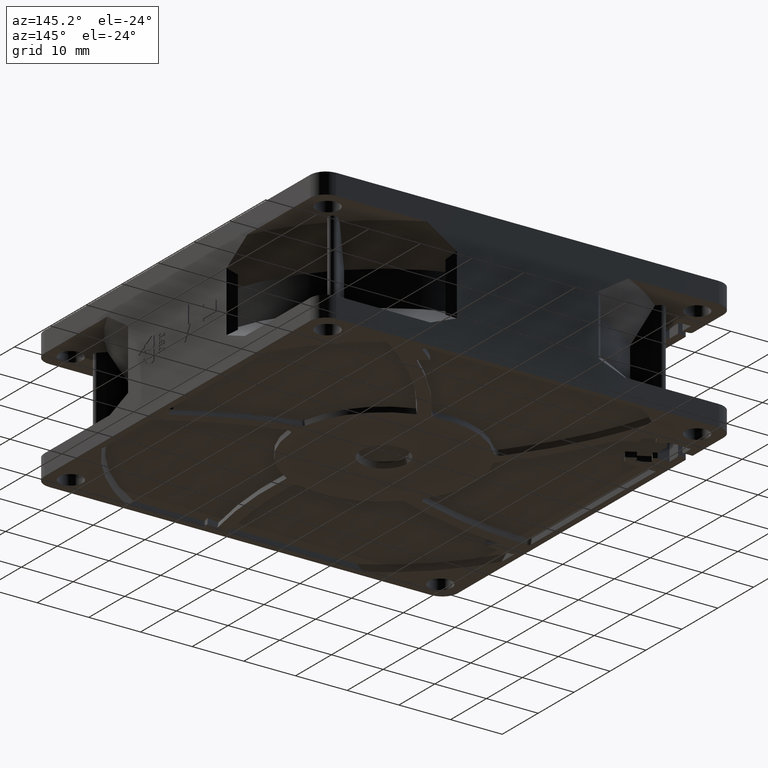
[diagram: clean part render]
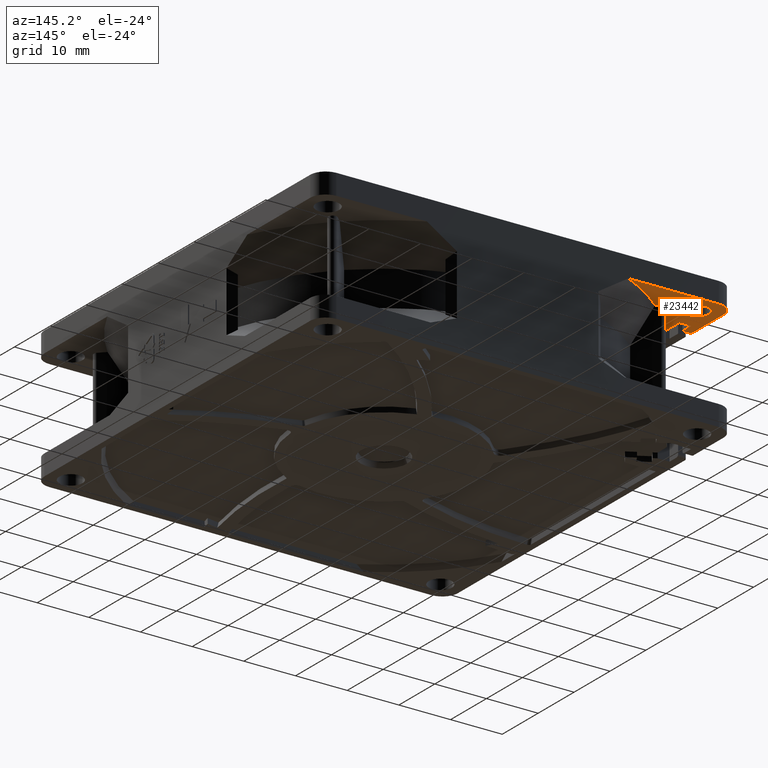
[diagram: same view with one face highlighted and labeled with its STEP entity id]
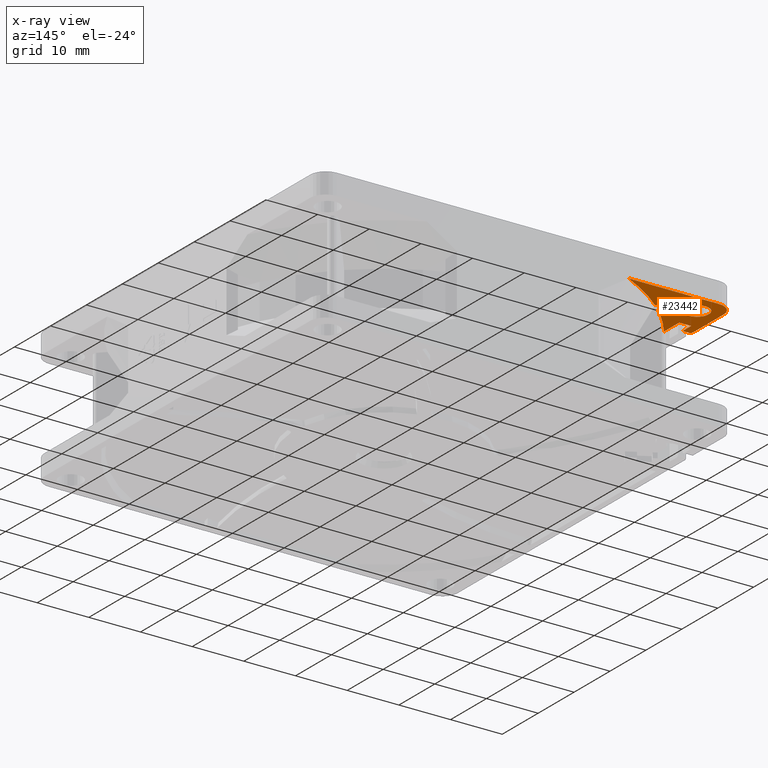
[diagram: x-ray of the same camera — body ghosted, the highlighted face saturated]
A machine part, auxiliary view. The second image highlights one B-rep face of the part: STEP entity #23442.
The next image is the same camera in x-ray: the body ghosted, the highlighted face saturated — about 0% of this face is hidden behind the body in this view.
In plain terms, the highlighted planar face has unit normal (0, 0, -1).
Its self-contained STEP definition (entity closure, byte-faithful):
#3640=DIRECTION('',(-7.071067811865E-1,7.071067811865E-1,0.E0));
#3641=VECTOR('',#3640,7.080102722282E-1);
#3642=CARTESIAN_POINT('',(-2.897010984391E1,3.377843595598E1,
-3.999999999942E0));
#3643=LINE('',#3642,#3641);
#3644=CARTESIAN_POINT('',(0.E0,0.E0,-4.E0));
#3645=DIRECTION('',(0.E0,0.E0,1.E0));
#3646=DIRECTION('',(-4.382022471910E-1,8.988764044944E-1,0.E0));
#3647=AXIS2_PLACEMENT_3D('',#3644,#3645,#3646);
#3649=CARTESIAN_POINT('',(-3.7E1,3.7E1,-4.E0));
#3650=DIRECTION('',(0.E0,0.E0,-1.E0));
#3651=DIRECTION('',(-1.E0,0.E0,0.E0));
#3652=AXIS2_PLACEMENT_3D('',#3649,#3650,#3651);
#3654=CARTESIAN_POINT('',(-3.95E1,2.85E1,-4.E0));
#3655=DIRECTION('',(0.E0,0.E0,-1.E0));
#3656=DIRECTION('',(0.E0,-1.E0,0.E0));
#3657=AXIS2_PLACEMENT_3D('',#3654,#3655,#3656);
#3659=CARTESIAN_POINT('',(0.E0,0.E0,-4.E0));
#3660=DIRECTION('',(0.E0,0.E0,1.E0));
#3661=DIRECTION('',(-6.795775447955E-1,7.336036808862E-1,0.E0));
#3662=AXIS2_PLACEMENT_3D('',#3659,#3660,#3661);
#3664=DIRECTION('',(7.071067811865E-1,-7.071067811866E-1,0.E0));
#3665=VECTOR('',#3664,6.104162831568E-1);
#3666=CARTESIAN_POINT('',(-3.067283023657E1,3.307699329260E1,
-3.999999999942E0));
#3667=LINE('',#3666,#3665);
#3668=CARTESIAN_POINT('',(-3.007178947256E1,3.367803405661E1,-4.E0));
#3669=DIRECTION('',(0.E0,0.E0,1.E0));
#3670=DIRECTION('',(-1.E0,1.671865260612E-14,0.E0));
#3671=AXIS2_PLACEMENT_3D('',#3668,#3669,#3670);
#3673=CARTESIAN_POINT('',(-3.007178947256E1,3.367803405661E1,-4.E0));
#3674=DIRECTION('',(0.E0,0.E0,1.E0));
#3675=DIRECTION('',(-6.660418487831E-1,7.459143755617E-1,0.E0));
#3676=AXIS2_PLACEMENT_3D('',#3673,#3674,#3675);
#3678=CARTESIAN_POINT('',(-3.007178947256E1,3.367803405661E1,-4.E0));
#3679=DIRECTION('',(0.E0,0.E0,1.E0));
#3680=DIRECTION('',(7.071067811865E-1,7.071067811865E-1,0.E0));
#3681=AXIS2_PLACEMENT_3D('',#3678,#3679,#3680);
#3683=CARTESIAN_POINT('',(-3.575E1,3.575E1,-4.E0));
#3684=DIRECTION('',(0.E0,0.E0,1.E0));
#3685=DIRECTION('',(1.E0,0.E0,0.E0));
#3686=AXIS2_PLACEMENT_3D('',#3683,#3684,#3685);
#3688=CARTESIAN_POINT('',(-3.575E1,3.575E1,-4.E0));
#3689=DIRECTION('',(0.E0,0.E0,1.E0));
#3690=DIRECTION('',(-1.E0,0.E0,0.E0));
#3691=AXIS2_PLACEMENT_3D('',#3688,#3689,#3690);
#3757=DIRECTION('',(-1.E0,0.E0,0.E0));
#3758=VECTOR('',#3757,1.75E1);
#3759=CARTESIAN_POINT('',(-1.95E1,4.E1,-4.E0));
#3760=LINE('',#3759,#3758);
#3766=CARTESIAN_POINT('',(-1.95E1,4.E1,-4.E0));
#5324=DIRECTION('',(0.E0,-1.E0,0.E0));
#5325=VECTOR('',#5324,4.241827280943E0);
#5326=CARTESIAN_POINT('',(-3.6E1,3.04E1,-4.E0));
#5327=LINE('',#5326,#5325);
#5339=DIRECTION('',(1.E0,0.E0,0.E0));
#5340=VECTOR('',#5339,2.3E0);
#5341=CARTESIAN_POINT('',(-3.83E1,3.04E1,-4.E0));
#5342=LINE('',#5341,#5340);
#5347=DIRECTION('',(0.E0,1.E0,0.E0));
#5348=VECTOR('',#5347,2.4E0);
#5349=CARTESIAN_POINT('',(-3.83E1,2.8E1,-4.E0));
#5350=LINE('',#5349,#5348);
#5360=DIRECTION('',(1.E0,0.E0,0.E0));
#5361=VECTOR('',#5360,1.2E0);
#5362=CARTESIAN_POINT('',(-3.95E1,2.8E1,-4.E0));
#5363=LINE('',#5362,#5361);
#5376=DIRECTION('',(0.E0,-1.E0,0.E0));
#5377=VECTOR('',#5376,8.5E0);
#5378=CARTESIAN_POINT('',(-4.E1,3.7E1,-4.E0));
#5379=LINE('',#5378,#5377);
#12181=CARTESIAN_POINT('',(-2.897010984391E1,3.377843595598E1,
-3.999999999942E0));
#12182=CARTESIAN_POINT('',(-2.947074870855E1,3.427907482062E1,
-3.999999999942E0));
#12183=VERTEX_POINT('',#12181);
#12184=VERTEX_POINT('',#12182);
#12185=CARTESIAN_POINT('',(-3.063792504402E1,3.431206127584E1,-4.E0));
#12186=VERTEX_POINT('',#12185);
#12187=CARTESIAN_POINT('',(-3.092178947256E1,3.367803405661E1,-4.E0));
#12188=VERTEX_POINT('',#12187);
#12201=CARTESIAN_POINT('',(-3.067283023657E1,3.307699329260E1,
-3.999999999942E0));
#12202=CARTESIAN_POINT('',(-3.024120074340E1,3.264536379943E1,
-3.999999999942E0));
#12203=VERTEX_POINT('',#12201);
#12204=VERTEX_POINT('',#12202);
#12205=CARTESIAN_POINT('',(-3.6E1,2.615817271906E1,-4.E0));
#12206=VERTEX_POINT('',#12205);
#12471=CARTESIAN_POINT('',(-3.8E1,3.575E1,-4.E0));
#12472=CARTESIAN_POINT('',(-3.35E1,3.575E1,-4.E0));
#12473=VERTEX_POINT('',#12471);
#12474=VERTEX_POINT('',#12472);
#12594=VERTEX_POINT('',#3766);
#12607=CARTESIAN_POINT('',(-4.E1,3.7E1,-4.E0));
#12608=CARTESIAN_POINT('',(-4.E1,2.85E1,-4.E0));
#12609=VERTEX_POINT('',#12607);
#12610=VERTEX_POINT('',#12608);
#12613=CARTESIAN_POINT('',(-3.7E1,4.E1,-4.E0));
#12614=VERTEX_POINT('',#12613);
#12701=CARTESIAN_POINT('',(-3.83E1,3.04E1,-4.E0));
#12702=CARTESIAN_POINT('',(-3.6E1,3.04E1,-4.E0));
#12703=VERTEX_POINT('',#12701);
#12704=VERTEX_POINT('',#12702);
#12709=CARTESIAN_POINT('',(-3.95E1,2.8E1,-4.E0));
#12710=CARTESIAN_POINT('',(-3.83E1,2.8E1,-4.E0));
#12711=VERTEX_POINT('',#12709);
#12712=VERTEX_POINT('',#12710);
#23402=CARTESIAN_POINT('',(7.047483746701E1,0.E0,-4.E0));
#23403=DIRECTION('',(0.E0,0.E0,-1.E0));
#23404=DIRECTION('',(-1.E0,0.E0,0.E0));
#23405=AXIS2_PLACEMENT_3D('',#23402,#23403,#23404);
#23406=PLANE('',#23405);
#23408=ORIENTED_EDGE('',*,*,#23407,.F.);
#23410=ORIENTED_EDGE('',*,*,#23409,.F.);
#23412=ORIENTED_EDGE('',*,*,#23411,.T.);
#23414=ORIENTED_EDGE('',*,*,#23413,.F.);
#23416=ORIENTED_EDGE('',*,*,#23415,.T.);
#23418=ORIENTED_EDGE('',*,*,#23417,.F.);
#23420=ORIENTED_EDGE('',*,*,#23419,.T.);
#23422=ORIENTED_EDGE('',*,*,#23421,.T.);
#23424=ORIENTED_EDGE('',*,*,#23423,.T.);
#23426=ORIENTED_EDGE('',*,*,#23425,.T.);
#23427=ORIENTED_EDGE('',*,*,#23280,.F.);
#23428=ORIENTED_EDGE('',*,*,#23378,.F.);
#23429=ORIENTED_EDGE('',*,*,#23393,.F.);
#23431=ORIENTED_EDGE('',*,*,#23430,.F.);
#23433=ORIENTED_EDGE('',*,*,#23432,.F.);
#23434=EDGE_LOOP('',(#23408,#23410,#23412,#23414,#23416,#23418,#23420,#23422,
#23424,#23426,#23427,#23428,#23429,#23431,#23433));
#23435=FACE_OUTER_BOUND('',#23434,.F.);
#23437=ORIENTED_EDGE('',*,*,#23436,.F.);
#23439=ORIENTED_EDGE('',*,*,#23438,.F.);
#23440=EDGE_LOOP('',(#23437,#23439));
#23441=FACE_BOUND('',#23440,.F.);
#23442=ADVANCED_FACE('',(#23435,#23441),#23406,.T.);
#3648=CIRCLE('',#3647,4.45E1);
#3653=CIRCLE('',#3652,3.E0);
#3658=CIRCLE('',#3657,5.E-1);
#3663=CIRCLE('',#3662,4.45E1);
#3672=CIRCLE('',#3671,8.5E-1);
#3677=CIRCLE('',#3676,8.5E-1);
#3682=CIRCLE('',#3681,8.5E-1);
#3687=CIRCLE('',#3686,2.25E0);
#3692=CIRCLE('',#3691,2.25E0);
#23280=EDGE_CURVE('',#12204,#12206,#3663,.T.);
#23378=EDGE_CURVE('',#12203,#12204,#3667,.T.);
#23393=EDGE_CURVE('',#12188,#12203,#3672,.T.);
#23407=EDGE_CURVE('',#12183,#12184,#3643,.T.);
#23409=EDGE_CURVE('',#12594,#12183,#3648,.T.);
#23411=EDGE_CURVE('',#12594,#12614,#3760,.T.);
#23413=EDGE_CURVE('',#12609,#12614,#3653,.T.);
#23415=EDGE_CURVE('',#12609,#12610,#5379,.T.);
#23417=EDGE_CURVE('',#12711,#12610,#3658,.T.);
#23419=EDGE_CURVE('',#12711,#12712,#5363,.T.);
#23421=EDGE_CURVE('',#12712,#12703,#5350,.T.);
#23423=EDGE_CURVE('',#12703,#12704,#5342,.T.);
#23425=EDGE_CURVE('',#12704,#12206,#5327,.T.);
#23430=EDGE_CURVE('',#12186,#12188,#3677,.T.);
#23432=EDGE_CURVE('',#12184,#12186,#3682,.T.);
#23436=EDGE_CURVE('',#12474,#12473,#3687,.T.);
#23438=EDGE_CURVE('',#12473,#12474,#3692,.T.);